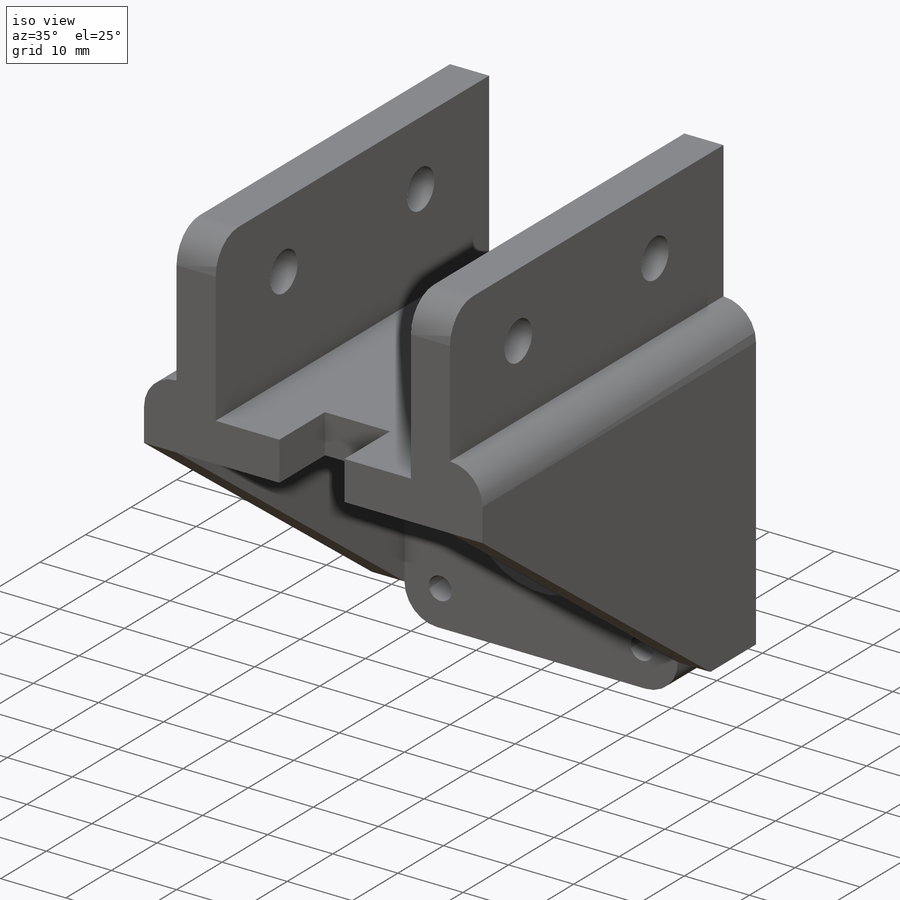
[diagram: iso view]
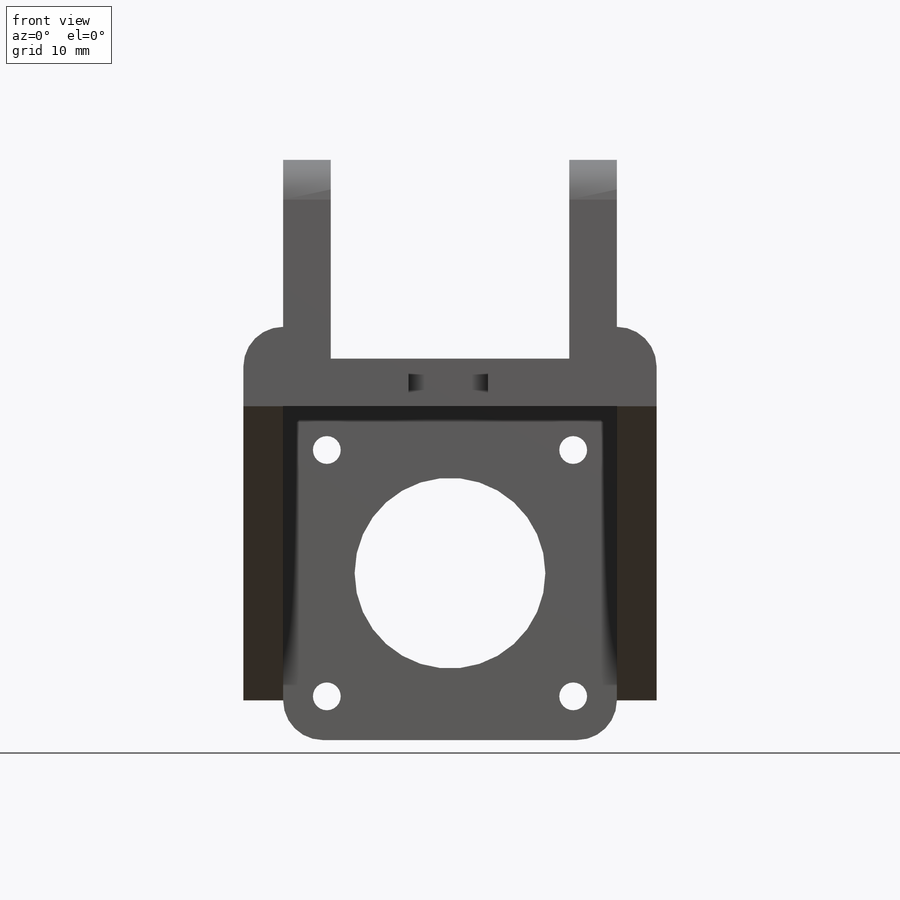
[diagram: front view]
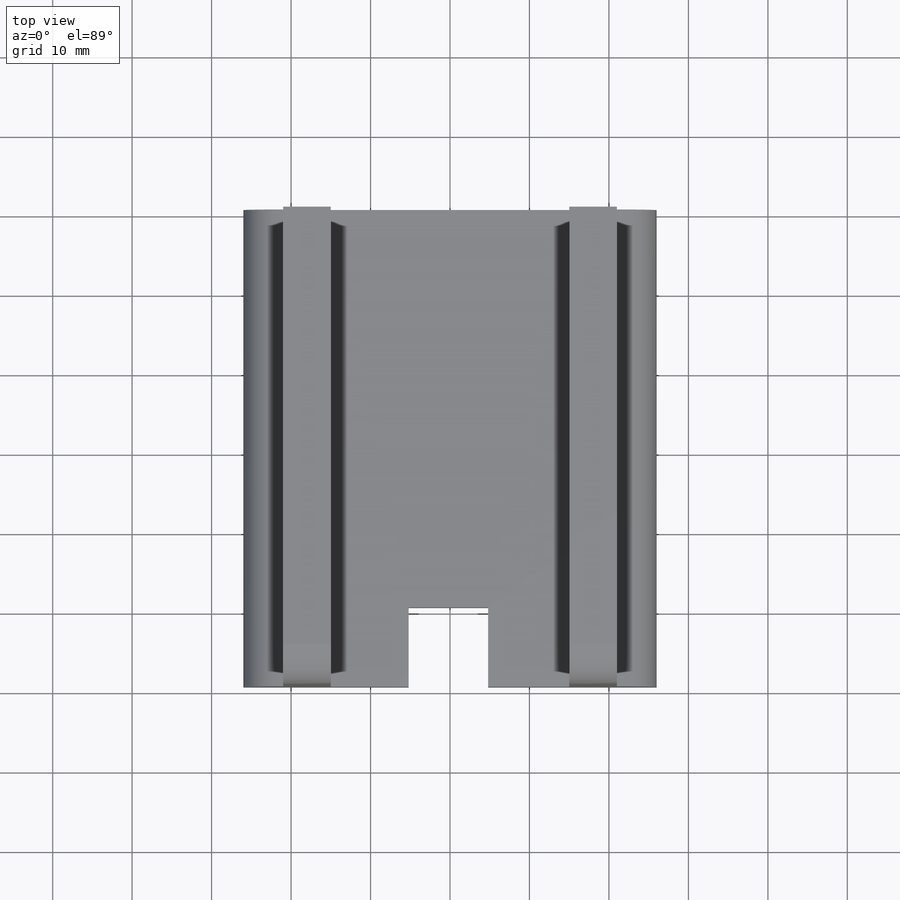
[diagram: top view]
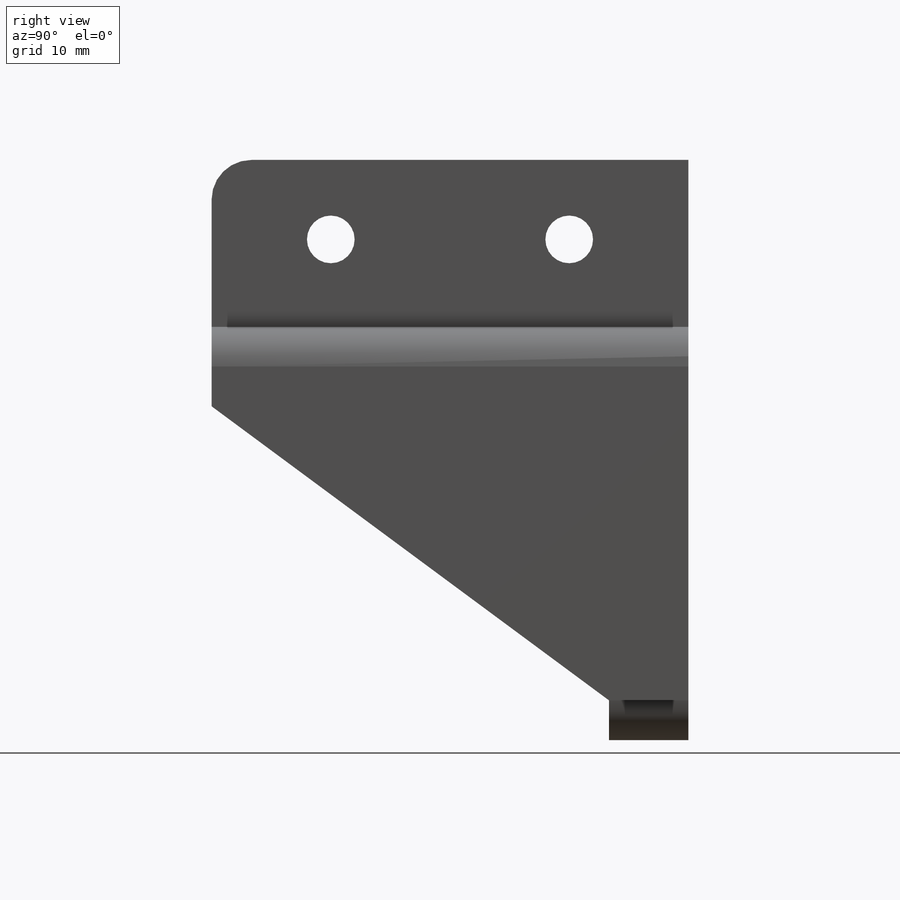
[diagram: right view]
SOLIDWORKS PART (.sldprt)
format: sldprt  version: not decoded by parser v0  size: 330,240 bytes
history: native  units: mm
features: sketch x8, extrude x6, fillet x2, cut_extrude x2, material x1, mirror x1 (+12 scaffold rows collapsed)
feature tree (32):
  scaffold x12  (default folders/planes/origin — collapsed)
  material  "ABS PC"
  sketch  "Sketch1"  dims[c1.D4=24.0mm c1.D6=3.5mm c1.D5=5.0mm c1.D1=~31.656854mm c1.D2=42.0mm c1.D3=~31.656854mm c2.D1=42.0mm c2.D2=42.0mm c2.D3=5.5mm c2.D4=~4.362361mm c2.D5=5.0mm c3.D4=5.0mm c3.D6=5.0mm c3.D7=~4.362361mm c3.D8=~4.362361mm c3.D9=~6.16931mm c4.D9=90.0deg c5.D9=~4.362361mm c5.D10=~4.362361mm c5.D7=6.0mm]
  extrude  "Boss-Extrude1"  Depth=10mm
  sketch  "Sketch4"  dims[D1=6.0mm]
  extrude  "Boss-Extrude2"  Depth=50mm
  sketch  "Sketch5"  dims[D1=6.0mm]
  extrude  "Boss-Extrude3"  Depth=25mm
  fillet  "Fillet1"  Radius=5mm
  sketch  "Sketch6"  dims[c1.D4=6.0mm c1.D1=15.0mm c1.D2=30.0mm c1.D3=10.0mm c2.D4=30.0mm c2.D5=10.0mm]
  cut_extrude  "Cut-Extrude1"  [1 undecoded]
  sketch  "Sketch7"  dims[c1.D1=13.0mm c1.D2=1.85mm c2.D1=~5.205241mm c3.D1=~0.423141deg c4.D1=10.0mm c4.D2=10.0mm c4.D3=10.0mm]
  cut_extrude  "Cut-Extrude2"  Depth=20mm
  sketch  "Sketch8"
  extrude  "Boss-Extrude4"  Depth=5mm
  sketch  "Sketch9"  dims[c1.D1=8.0mm c1.D2=45.0mm c2.D2=~0.308991deg c3.D2=5.0mm c3.D1=10.0mm c4.D2=10.0mm]
  extrude  "Boss-Extrude5"  Depth=5mm
  fillet  "Fillet6"  Radius=5mm
  mirror  "Mirror5"
  sketch  "Sketch10"
  extrude  "Boss-Extrude6"  Depth=5mm
decode coverage: 15 of 19 modeling features carry decoded parameters
note: ~ marks probable driven/reference dimensions
note: 1 parameter value undecoded
note: suppression state not decoded; provenance and decode notes live in map.json
